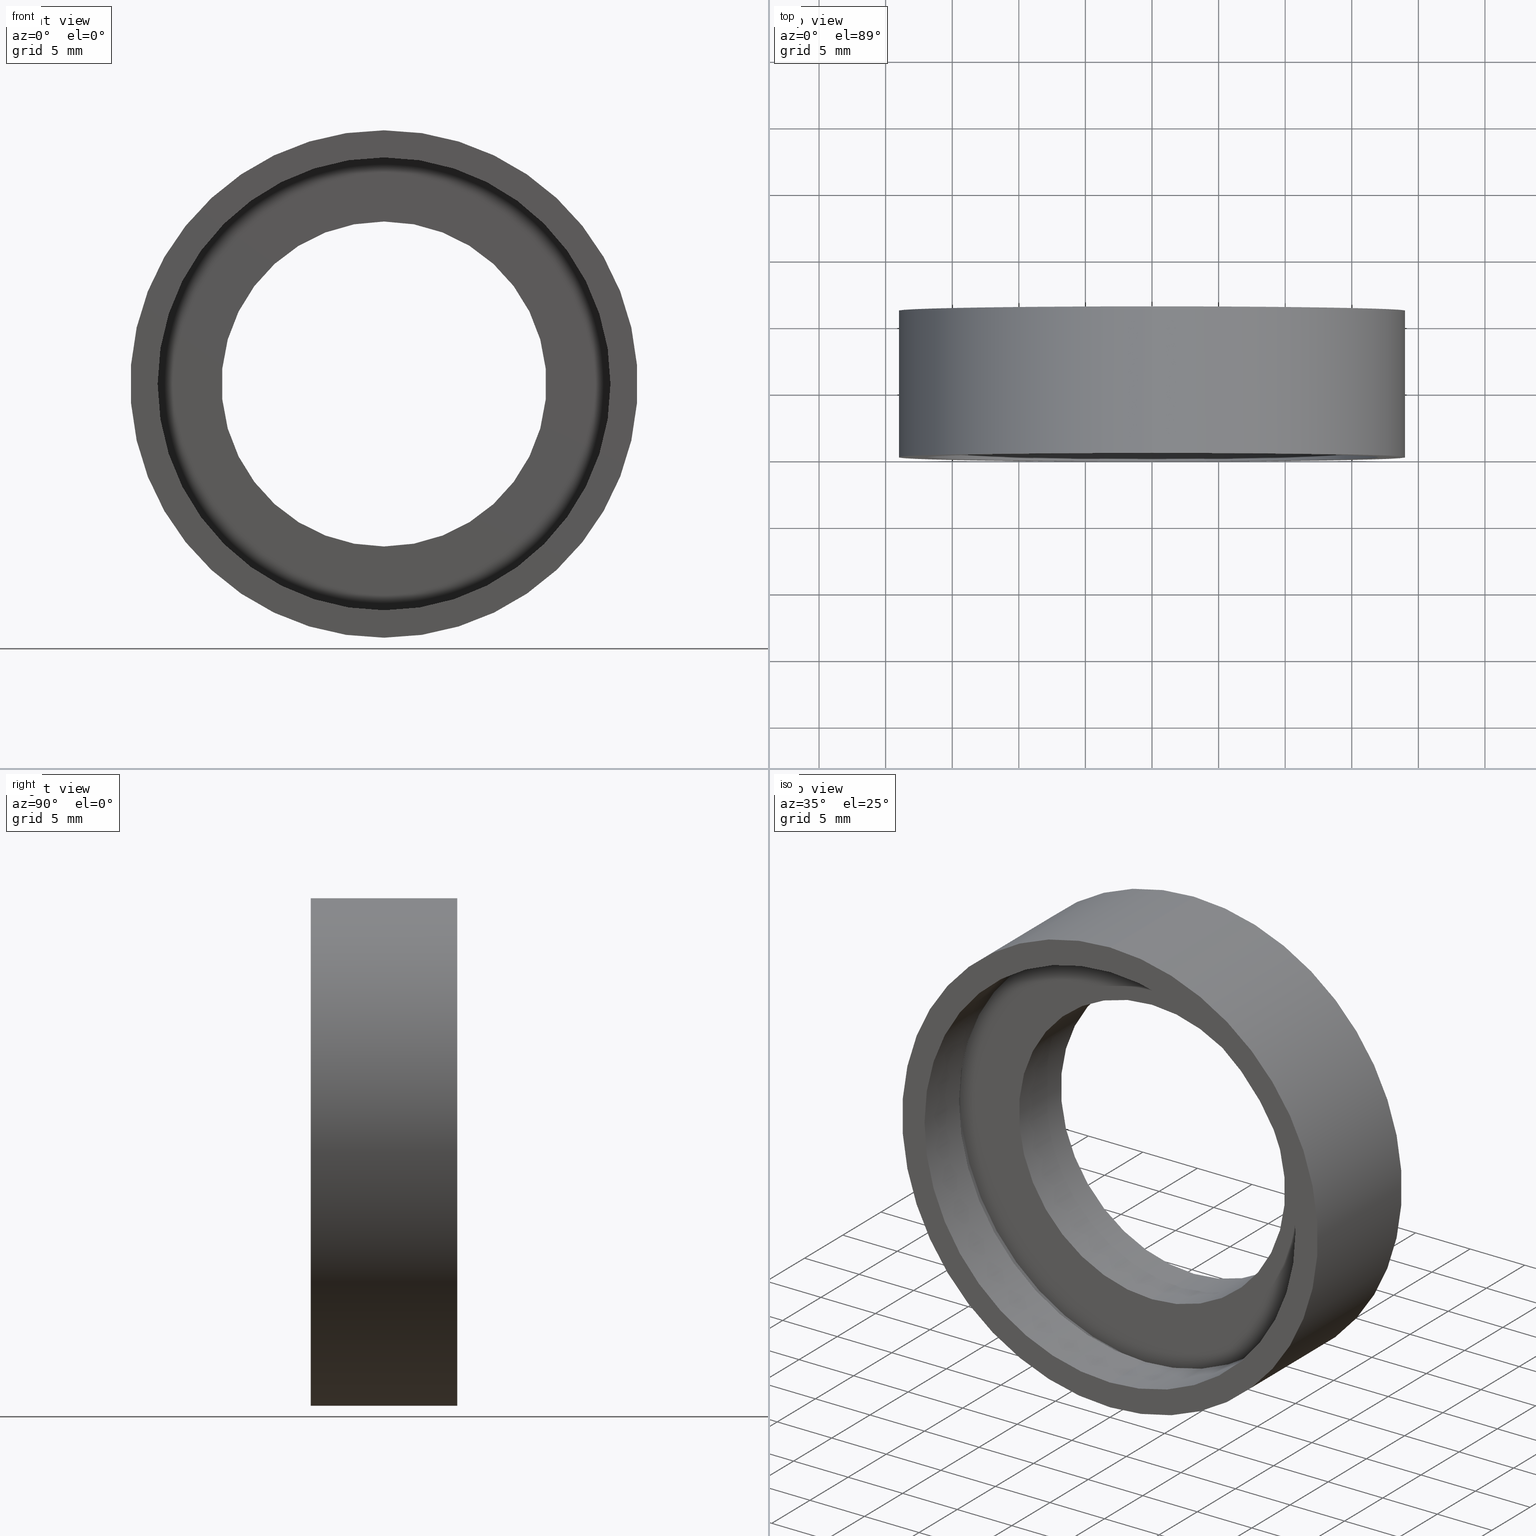
[diagram: canonical four-view strip — front | top / right | iso, engineering-drawing reading convention]
A machine part, canonical four-view strip (front | top / right | iso — engineering-drawing reading convention). The complete STEP part file that produces these views, byte-faithful:
ISO-10303-21;
HEADER;
FILE_DESCRIPTION (( 'STEP AP214' ),
    '1' );
FILE_NAME ('504057.STEP',
    '2019-10-09T07:02:09',
    ( 'user' ),
    ( '΢���й�' ),
    'SwSTEP 2.0',
    'SolidWorks 2016',
    '' );
FILE_SCHEMA (( 'AUTOMOTIVE_DESIGN' ));
ENDSEC;

DATA;
#1 = DIRECTION ( 'NONE',  ( -0.0000000000000000000, 1.000000000000000000, -0.0000000000000000000 ) ) ;
#2 = ORIENTED_EDGE ( 'NONE', *, *, #4, .F. ) ;
#3 = DIRECTION ( 'NONE',  ( 0.0000000000000000000, 0.0000000000000000000, 1.000000000000000000 ) ) ;
#4 = EDGE_CURVE ( 'NONE', #171, #128, #212, .T. ) ;
#5 = ADVANCED_FACE ( 'NONE', ( #52 ), #211, .T. ) ;
#6 = DIRECTION ( 'NONE',  ( 0.0000000000000000000, 0.0000000000000000000, 1.000000000000000000 ) ) ;
#7 = CIRCLE ( 'NONE', #50, 12.20000000000000600 ) ;
#8 = CARTESIAN_POINT ( 'NONE',  ( 0.0000000000000000000, 4.499999999999997300, 0.0000000000000000000 ) ) ;
#9 = MECHANICAL_DESIGN_GEOMETRIC_PRESENTATION_REPRESENTATION (  '', ( #310 ), #144 ) ;
#10 = CARTESIAN_POINT ( 'NONE',  ( 0.0000000000000000000, 0.0000000000000000000, 17.00000000000000700 ) ) ;
#11 =( NAMED_UNIT ( * ) SI_UNIT ( $, .STERADIAN. ) SOLID_ANGLE_UNIT ( ) );
#12 = EDGE_LOOP ( 'NONE', ( #146, #368, #273, #2 ) ) ;
#13 = VECTOR ( 'NONE', #434, 1000.000000000000000 ) ;
#14 = MECHANICAL_DESIGN_GEOMETRIC_PRESENTATION_REPRESENTATION (  '', ( #331 ), #34 ) ;
#15 = EDGE_LOOP ( 'NONE', ( #184, #426, #256, #110 ) ) ;
#16 = DIRECTION ( 'NONE',  ( 0.0000000000000000000, 0.0000000000000000000, 1.000000000000000000 ) ) ;
#17 = CARTESIAN_POINT ( 'NONE',  ( 0.0000000000000000000, 4.499999999999997300, 0.0000000000000000000 ) ) ;
#18 = EDGE_CURVE ( 'NONE', #318, #300, #360, .T. ) ;
#19 = CIRCLE ( 'NONE', #89, 19.05000000000000400 ) ;
#20 = DIRECTION ( 'NONE',  ( 0.0000000000000000000, -0.0000000000000000000, -1.000000000000000000 ) ) ;
#21 = VECTOR ( 'NONE', #107, 1000.000000000000000 ) ;
#22 = DIRECTION ( 'NONE',  ( 0.0000000000000000000, 0.0000000000000000000, 1.000000000000000000 ) ) ;
#23 = CARTESIAN_POINT ( 'NONE',  ( 0.0000000000000000000, 60.02082041425541100, 0.0000000000000000000 ) ) ;
#24 = SURFACE_STYLE_USAGE ( .BOTH. , #229 ) ;
#25 = PRESENTATION_STYLE_ASSIGNMENT (( #364 ) ) ;
#26 = DIRECTION ( 'NONE',  ( -0.0000000000000000000, 1.000000000000000000, -0.0000000000000000000 ) ) ;
#27 = CARTESIAN_POINT ( 'NONE',  ( 0.0000000000000000000, 5.499999999999998200, 17.60000000000001200 ) ) ;
#28 = VECTOR ( 'NONE', #258, 1000.000000000000000 ) ;
#29 = SURFACE_SIDE_STYLE ('',( #65 ) ) ;
#30 = AXIS2_PLACEMENT_3D ( 'NONE', #312, #228, #239 ) ;
#31 = DIRECTION ( 'NONE',  ( 0.0000000000000000000, 0.0000000000000000000, 1.000000000000000000 ) ) ;
#32 = CARTESIAN_POINT ( 'NONE',  ( 1.494069094959771600E-015, 10.99999999999999600, -12.20000000000000600 ) ) ;
#33 = LINE ( 'NONE', #279, #21 ) ;
#34 =( GEOMETRIC_REPRESENTATION_CONTEXT ( 3 ) GLOBAL_UNCERTAINTY_ASSIGNED_CONTEXT ( ( #432 ) ) GLOBAL_UNIT_ASSIGNED_CONTEXT ( ( #154, #209, #352 ) ) REPRESENTATION_CONTEXT ( 'NONE', 'WORKASPACE' ) );
#35 = ORIENTED_EDGE ( 'NONE', *, *, #406, .T. ) ;
#36 = DIRECTION ( 'NONE',  ( -0.0000000000000000000, 1.000000000000000000, -0.0000000000000000000 ) ) ;
#37 = ADVANCED_FACE ( 'NONE', ( #198 ), #316, .T. ) ;
#38 = PRESENTATION_LAYER_ASSIGNMENT (  '', '', ( #41 ) ) ;
#39 = DIRECTION ( 'NONE',  ( 0.0000000000000000000, 0.0000000000000000000, 1.000000000000000000 ) ) ;
#40 = CARTESIAN_POINT ( 'NONE',  ( 0.0000000000000000000, 60.02082041425541100, 0.0000000000000000000 ) ) ;
#41 = STYLED_ITEM ( 'NONE', ( #143 ), #354 ) ;
#42 = CARTESIAN_POINT ( 'NONE',  ( 0.0000000000000000000, 0.0000000000000000000, 0.0000000000000000000 ) ) ;
#43 = FILL_AREA_STYLE_COLOUR ( '', #66 ) ;
#44 = DIRECTION ( 'NONE',  ( -0.0000000000000000000, 1.000000000000000000, -0.0000000000000000000 ) ) ;
#45 = CIRCLE ( 'NONE', #265, 12.20000000000000600 ) ;
#46 = DIRECTION ( 'NONE',  ( -0.0000000000000000000, 1.000000000000000000, -0.0000000000000000000 ) ) ;
#47 = DIRECTION ( 'NONE',  ( 0.0000000000000000000, 0.0000000000000000000, 1.000000000000000000 ) ) ;
#48 = CARTESIAN_POINT ( 'NONE',  ( 0.0000000000000000000, 4.499999999999997300, 0.0000000000000000000 ) ) ;
#49 = DIRECTION ( 'NONE',  ( -0.0000000000000000000, 1.000000000000000000, -0.0000000000000000000 ) ) ;
#50 = AXIS2_PLACEMENT_3D ( 'NONE', #392, #147, #80 ) ;
#51 = CARTESIAN_POINT ( 'NONE',  ( 1.494069094959771600E-015, 60.02082041425541100, -12.20000000000000600 ) ) ;
#52 = FACE_OUTER_BOUND ( 'NONE', #413, .T. ) ;
#53 = PLANE ( 'NONE',  #335 ) ;
#54 = VECTOR ( 'NONE', #409, 1000.000000000000000 ) ;
#55 = COLOUR_RGB ( '',1.000000000000000000, 1.000000000000000000, 1.000000000000000000 ) ;
#56 = DIRECTION ( 'NONE',  ( 0.0000000000000000000, 0.0000000000000000000, 1.000000000000000000 ) ) ;
#57 = AXIS2_PLACEMENT_3D ( 'NONE', #240, #415, #3 ) ;
#58 = CARTESIAN_POINT ( 'NONE',  ( 0.0000000000000000000, 5.499999999999998200, 0.0000000000000000000 ) ) ;
#59 = PRODUCT ( '504057', '504057', '', ( #345 ) ) ;
#60 = PRESENTATION_STYLE_ASSIGNMENT (( #139 ) ) ;
#61 = CARTESIAN_POINT ( 'NONE',  ( 12.20000000000000600, 11.00000000000000000, 0.0000000000000000000 ) ) ;
#62 = ORIENTED_EDGE ( 'NONE', *, *, #379, .F. ) ;
#63 = ORIENTED_EDGE ( 'NONE', *, *, #153, .F. ) ;
#64 = DIRECTION ( 'NONE',  ( -0.0000000000000000000, 1.000000000000000000, -0.0000000000000000000 ) ) ;
#65 = SURFACE_STYLE_FILL_AREA ( #338 ) ;
#66 = COLOUR_RGB ( '',1.000000000000000000, 1.000000000000000000, 1.000000000000000000 ) ;
#67 = DIRECTION ( 'NONE',  ( 0.0000000000000000000, 0.0000000000000000000, 1.000000000000000000 ) ) ;
#68 = ORIENTED_EDGE ( 'NONE', *, *, #397, .F. ) ;
#69 = PRODUCT_DEFINITION ( 'δ֪', '', #150, #203 ) ;
#70 = CARTESIAN_POINT ( 'NONE',  ( 0.0000000000000000000, 10.99999999999999600, 0.0000000000000000000 ) ) ;
#71 = SURFACE_STYLE_FILL_AREA ( #197 ) ;
#72 = COLOUR_RGB ( '',1.000000000000000000, 1.000000000000000000, 1.000000000000000000 ) ;
#73 = CIRCLE ( 'NONE', #57, 17.00000000000000700 ) ;
#74 =( NAMED_UNIT ( * ) SI_UNIT ( $, .STERADIAN. ) SOLID_ANGLE_UNIT ( ) );
#75 =( GEOMETRIC_REPRESENTATION_CONTEXT ( 3 ) GLOBAL_UNCERTAINTY_ASSIGNED_CONTEXT ( ( #136 ) ) GLOBAL_UNIT_ASSIGNED_CONTEXT ( ( #272, #163, #299 ) ) REPRESENTATION_CONTEXT ( 'NONE', 'WORKASPACE' ) );
#76 = CARTESIAN_POINT ( 'NONE',  ( 0.0000000000000000000, 10.99999999999999600, 19.05000000000000400 ) ) ;
#77 = UNCERTAINTY_MEASURE_WITH_UNIT (LENGTH_MEASURE( 1.000000000000000100E-005 ), #199, 'distance_accuracy_value', 'NONE');
#78 = FACE_OUTER_BOUND ( 'NONE', #135, .T. ) ;
#79 =( GEOMETRIC_REPRESENTATION_CONTEXT ( 3 ) GLOBAL_UNCERTAINTY_ASSIGNED_CONTEXT ( ( #183 ) ) GLOBAL_UNIT_ASSIGNED_CONTEXT ( ( #222, #408, #11 ) ) REPRESENTATION_CONTEXT ( 'NONE', 'WORKASPACE' ) );
#80 = DIRECTION ( 'NONE',  ( 0.0000000000000000000, 0.0000000000000000000, 1.000000000000000000 ) ) ;
#81 = CARTESIAN_POINT ( 'NONE',  ( 0.0000000000000000000, 4.499999999999997300, 17.00000000000000700 ) ) ;
#82 = UNCERTAINTY_MEASURE_WITH_UNIT (LENGTH_MEASURE( 1.000000000000000100E-005 ), #378, 'distance_accuracy_value', 'NONE');
#83 = SHAPE_DEFINITION_REPRESENTATION ( #430, #194 ) ;
#84 = FACE_OUTER_BOUND ( 'NONE', #98, .T. ) ;
#85 = LINE ( 'NONE', #351, #220 ) ;
#86 = VERTEX_POINT ( 'NONE', #10 ) ;
#87 = UNCERTAINTY_MEASURE_WITH_UNIT (LENGTH_MEASURE( 1.000000000000000100E-005 ), #112, 'distance_accuracy_value', 'NONE');
#88 = ADVANCED_FACE ( 'NONE', ( #267 ), #367, .F. ) ;
#89 = AXIS2_PLACEMENT_3D ( 'NONE', #70, #91, #371 ) ;
#90 = AXIS2_PLACEMENT_3D ( 'NONE', #58, #332, #22 ) ;
#91 = DIRECTION ( 'NONE',  ( -0.0000000000000000000, 1.000000000000000000, -0.0000000000000000000 ) ) ;
#92 = AXIS2_PLACEMENT_3D ( 'NONE', #42, #67, #126 ) ;
#93 =( LENGTH_UNIT ( ) NAMED_UNIT ( * ) SI_UNIT ( .MILLI., .METRE. ) );
#94 = LINE ( 'NONE', #51, #54 ) ;
#95 = CIRCLE ( 'NONE', #280, 19.05000000000000400 ) ;
#96 = CYLINDRICAL_SURFACE ( 'NONE', #271, 17.00000000000000700 ) ;
#97 = DIRECTION ( 'NONE',  ( -0.0000000000000000000, 1.000000000000000000, 0.0000000000000000000 ) ) ;
#98 = EDGE_LOOP ( 'NONE', ( #277, #282 ) ) ;
#99 = AXIS2_PLACEMENT_3D ( 'NONE', #40, #44, #16 ) ;
#100 = DIRECTION ( 'NONE',  ( -0.0000000000000000000, 1.000000000000000000, -0.0000000000000000000 ) ) ;
#101 = CARTESIAN_POINT ( 'NONE',  ( 2.155378366499343200E-015, 60.02082041425541100, -17.60000000000001200 ) ) ;
#102 = AXIS2_PLACEMENT_3D ( 'NONE', #372, #263, #106 ) ;
#103 = CIRCLE ( 'NONE', #148, 19.05000000000000400 ) ;
#104 = ORIENTED_EDGE ( 'NONE', *, *, #342, .F. ) ;
#105 = EDGE_LOOP ( 'NONE', ( #422, #248, #424, #339 ) ) ;
#106 = DIRECTION ( 'NONE',  ( 0.0000000000000000000, 0.0000000000000000000, 1.000000000000000000 ) ) ;
#107 = DIRECTION ( 'NONE',  ( -0.0000000000000000000, 1.000000000000000000, -0.0000000000000000000 ) ) ;
#108 = EDGE_LOOP ( 'NONE', ( #63, #420, #257, #104 ) ) ;
#109 = DIRECTION ( 'NONE',  ( 0.0000000000000000000, 0.0000000000000000000, 1.000000000000000000 ) ) ;
#110 = ORIENTED_EDGE ( 'NONE', *, *, #18, .T. ) ;
#111 = DIRECTION ( 'NONE',  ( -0.0000000000000000000, 1.000000000000000000, -0.0000000000000000000 ) ) ;
#112 =( LENGTH_UNIT ( ) NAMED_UNIT ( * ) SI_UNIT ( .MILLI., .METRE. ) );
#113 = AXIS2_PLACEMENT_3D ( 'NONE', #193, #64, #116 ) ;
#114 = SURFACE_STYLE_FILL_AREA ( #125 ) ;
#115 = EDGE_CURVE ( 'NONE', #333, #171, #242, .T. ) ;
#116 = DIRECTION ( 'NONE',  ( 0.0000000000000000000, 0.0000000000000000000, 1.000000000000000000 ) ) ;
#117 = CIRCLE ( 'NONE', #278, 17.00000000000000700 ) ;
#118 = ORIENTED_EDGE ( 'NONE', *, *, #304, .T. ) ;
#119 = AXIS2_PLACEMENT_3D ( 'NONE', #48, #111, #164 ) ;
#120 = DIRECTION ( 'NONE',  ( 0.0000000000000000000, -0.0000000000000000000, -1.000000000000000000 ) ) ;
#121 = CIRCLE ( 'NONE', #359, 12.20000000000000600 ) ;
#122 = CARTESIAN_POINT ( 'NONE',  ( 0.0000000000000000000, 60.02082041425541100, 0.0000000000000000000 ) ) ;
#123 = AXIS2_PLACEMENT_3D ( 'NONE', #427, #419, #382 ) ;
#124 = PRESENTATION_STYLE_ASSIGNMENT (( #259 ) ) ;
#125 = FILL_AREA_STYLE ('',( #238 ) ) ;
#126 = DIRECTION ( 'NONE',  ( 1.000000000000000000, 0.0000000000000000000, 0.0000000000000000000 ) ) ;
#127 = ORIENTED_EDGE ( 'NONE', *, *, #373, .F. ) ;
#128 = VERTEX_POINT ( 'NONE', #27 ) ;
#129 = VERTEX_POINT ( 'NONE', #402 ) ;
#130 = EDGE_CURVE ( 'NONE', #156, #158, #94, .T. ) ;
#131 = DIRECTION ( 'NONE',  ( -0.0000000000000000000, 1.000000000000000000, 0.0000000000000000000 ) ) ;
#132 = DIRECTION ( 'NONE',  ( -0.0000000000000000000, 1.000000000000000000, -0.0000000000000000000 ) ) ;
#133 = DIRECTION ( 'NONE',  ( 0.0000000000000000000, 0.0000000000000000000, 1.000000000000000000 ) ) ;
#134 = VECTOR ( 'NONE', #46, 1000.000000000000000 ) ;
#135 = EDGE_LOOP ( 'NONE', ( #296, #215 ) ) ;
#136 = UNCERTAINTY_MEASURE_WITH_UNIT (LENGTH_MEASURE( 1.000000000000000100E-005 ), #272, 'distance_accuracy_value', 'NONE');
#137 = FACE_OUTER_BOUND ( 'NONE', #108, .T. ) ;
#138 = FACE_OUTER_BOUND ( 'NONE', #241, .T. ) ;
#139 = SURFACE_STYLE_USAGE ( .BOTH. , #216 ) ;
#140 = CARTESIAN_POINT ( 'NONE',  ( 0.0000000000000000000, 10.99999999999999600, 0.0000000000000000000 ) ) ;
#141 = FACE_BOUND ( 'NONE', #214, .T. ) ;
#142 = ADVANCED_FACE ( 'NONE', ( #411 ), #96, .F. ) ;
#143 = PRESENTATION_STYLE_ASSIGNMENT (( #357 ) ) ;
#144 =( GEOMETRIC_REPRESENTATION_CONTEXT ( 3 ) GLOBAL_UNCERTAINTY_ASSIGNED_CONTEXT ( ( #77 ) ) GLOBAL_UNIT_ASSIGNED_CONTEXT ( ( #199, #329, #291 ) ) REPRESENTATION_CONTEXT ( 'NONE', 'WORKASPACE' ) );
#145 = AXIS2_PLACEMENT_3D ( 'NONE', #431, #131, #219 ) ;
#146 = ORIENTED_EDGE ( 'NONE', *, *, #115, .F. ) ;
#147 = DIRECTION ( 'NONE',  ( -0.0000000000000000000, 1.000000000000000000, -0.0000000000000000000 ) ) ;
#148 = AXIS2_PLACEMENT_3D ( 'NONE', #405, #315, #31 ) ;
#149 = CYLINDRICAL_SURFACE ( 'NONE', #311, 12.20000000000000600 ) ;
#150 = PRODUCT_DEFINITION_FORMATION_WITH_SPECIFIED_SOURCE ( '�κ�', '', #59, .NOT_KNOWN. ) ;
#151 = VERTEX_POINT ( 'NONE', #76 ) ;
#152 = DIRECTION ( 'NONE',  ( 0.0000000000000000000, 0.0000000000000000000, 1.000000000000000000 ) ) ;
#153 = EDGE_CURVE ( 'NONE', #156, #170, #45, .T. ) ;
#154 =( LENGTH_UNIT ( ) NAMED_UNIT ( * ) SI_UNIT ( .MILLI., .METRE. ) );
#155 = ORIENTED_EDGE ( 'NONE', *, *, #185, .F. ) ;
#156 = VERTEX_POINT ( 'NONE', #205 ) ;
#157 = DIRECTION ( 'NONE',  ( -0.0000000000000000000, 1.000000000000000000, -0.0000000000000000000 ) ) ;
#158 = VERTEX_POINT ( 'NONE', #32 ) ;
#159 = FILL_AREA_STYLE_COLOUR ( '', #186 ) ;
#160 = DIRECTION ( 'NONE',  ( -0.0000000000000000000, 1.000000000000000000, -0.0000000000000000000 ) ) ;
#161 = ORIENTED_EDGE ( 'NONE', *, *, #386, .F. ) ;
#162 = ORIENTED_EDGE ( 'NONE', *, *, #130, .F. ) ;
#163 =( NAMED_UNIT ( * ) PLANE_ANGLE_UNIT ( ) SI_UNIT ( $, .RADIAN. ) );
#164 = DIRECTION ( 'NONE',  ( 0.0000000000000000000, 0.0000000000000000000, 1.000000000000000000 ) ) ;
#165 = ORIENTED_EDGE ( 'NONE', *, *, #313, .T. ) ;
#166 = ORIENTED_EDGE ( 'NONE', *, *, #376, .F. ) ;
#167 =( NAMED_UNIT ( * ) SI_UNIT ( $, .STERADIAN. ) SOLID_ANGLE_UNIT ( ) );
#168 = APPLICATION_CONTEXT ( 'automotive_design' ) ;
#169 = DIRECTION ( 'NONE',  ( 0.0000000000000000000, 0.0000000000000000000, 1.000000000000000000 ) ) ;
#170 = VERTEX_POINT ( 'NONE', #418 ) ;
#171 = VERTEX_POINT ( 'NONE', #353 ) ;
#172 = CARTESIAN_POINT ( 'NONE',  ( 0.0000000000000000000, 60.02082041425541100, 19.05000000000000400 ) ) ;
#173 = FILL_AREA_STYLE_COLOUR ( '', #55 ) ;
#174 = EDGE_LOOP ( 'NONE', ( #165, #187 ) ) ;
#175 = AXIS2_PLACEMENT_3D ( 'NONE', #403, #309, #6 ) ;
#176 = CIRCLE ( 'NONE', #113, 19.05000000000000400 ) ;
#177 = AXIS2_PLACEMENT_3D ( 'NONE', #349, #36, #213 ) ;
#178 = SURFACE_STYLE_FILL_AREA ( #317 ) ;
#179 = CARTESIAN_POINT ( 'NONE',  ( 2.332952152375708400E-015, 60.02082041425541100, -19.05000000000000400 ) ) ;
#180 = CIRCLE ( 'NONE', #119, 17.60000000000001200 ) ;
#181 = EDGE_LOOP ( 'NONE', ( #341, #118, #230, #127 ) ) ;
#182 = FILL_AREA_STYLE ('',( #227 ) ) ;
#183 = UNCERTAINTY_MEASURE_WITH_UNIT (LENGTH_MEASURE( 1.000000000000000100E-005 ), #222, 'distance_accuracy_value', 'NONE');
#184 = ORIENTED_EDGE ( 'NONE', *, *, #304, .F. ) ;
#185 = EDGE_CURVE ( 'NONE', #326, #128, #390, .T. ) ;
#186 = COLOUR_RGB ( '',1.000000000000000000, 1.000000000000000000, 1.000000000000000000 ) ;
#187 = ORIENTED_EDGE ( 'NONE', *, *, #400, .T. ) ;
#188 = DIRECTION ( 'NONE',  ( -0.0000000000000000000, 1.000000000000000000, -0.0000000000000000000 ) ) ;
#189 = CARTESIAN_POINT ( 'NONE',  ( 0.0000000000000000000, 0.0000000000000000000, 19.05000000000000400 ) ) ;
#190 = ORIENTED_EDGE ( 'NONE', *, *, #18, .F. ) ;
#191 = FACE_OUTER_BOUND ( 'NONE', #255, .T. ) ;
#192 = FACE_OUTER_BOUND ( 'NONE', #12, .T. ) ;
#193 = CARTESIAN_POINT ( 'NONE',  ( 0.0000000000000000000, 0.0000000000000000000, 0.0000000000000000000 ) ) ;
#194 = ADVANCED_BREP_SHAPE_REPRESENTATION ( '504057', ( #303, #92 ), #79 ) ;
#195 = DIRECTION ( 'NONE',  ( -0.0000000000000000000, 1.000000000000000000, -0.0000000000000000000 ) ) ;
#196 = MECHANICAL_DESIGN_GEOMETRIC_PRESENTATION_REPRESENTATION (  '', ( #274 ), #217 ) ;
#197 = FILL_AREA_STYLE ('',( #43 ) ) ;
#198 = FACE_OUTER_BOUND ( 'NONE', #105, .T. ) ;
#199 =( LENGTH_UNIT ( ) NAMED_UNIT ( * ) SI_UNIT ( .MILLI., .METRE. ) );
#200 = APPLICATION_CONTEXT ( 'automotive_design' ) ;
#201 = PRESENTATION_LAYER_ASSIGNMENT (  '', '', ( #274 ) ) ;
#202 = SURFACE_SIDE_STYLE ('',( #178 ) ) ;
#203 = PRODUCT_DEFINITION_CONTEXT ( 'detailed design', #168, 'design' ) ;
#204 = CIRCLE ( 'NONE', #208, 17.00000000000000700 ) ;
#205 = CARTESIAN_POINT ( 'NONE',  ( 1.494069094959771600E-015, 5.499999999999998200, -12.20000000000000600 ) ) ;
#206 = PRESENTATION_STYLE_ASSIGNMENT (( #24 ) ) ;
#207 = FACE_BOUND ( 'NONE', #399, .T. ) ;
#208 = AXIS2_PLACEMENT_3D ( 'NONE', #276, #395, #340 ) ;
#209 =( NAMED_UNIT ( * ) PLANE_ANGLE_UNIT ( ) SI_UNIT ( $, .RADIAN. ) );
#210 = DIRECTION ( 'NONE',  ( -0.0000000000000000000, 1.000000000000000000, -0.0000000000000000000 ) ) ;
#211 = CYLINDRICAL_SURFACE ( 'NONE', #30, 19.05000000000000400 ) ;
#212 = LINE ( 'NONE', #324, #13 ) ;
#213 = DIRECTION ( 'NONE',  ( 0.0000000000000000000, 0.0000000000000000000, 1.000000000000000000 ) ) ;
#214 = EDGE_LOOP ( 'NONE', ( #433, #268 ) ) ;
#215 = ORIENTED_EDGE ( 'NONE', *, *, #115, .T. ) ;
#216 = SURFACE_SIDE_STYLE ('',( #71 ) ) ;
#217 =( GEOMETRIC_REPRESENTATION_CONTEXT ( 3 ) GLOBAL_UNCERTAINTY_ASSIGNED_CONTEXT ( ( #82 ) ) GLOBAL_UNIT_ASSIGNED_CONTEXT ( ( #378, #355, #74 ) ) REPRESENTATION_CONTEXT ( 'NONE', 'WORKASPACE' ) );
#218 = CARTESIAN_POINT ( 'NONE',  ( 2.332952152375708400E-015, 10.99999999999999600, -19.05000000000000400 ) ) ;
#219 = DIRECTION ( 'NONE',  ( 0.0000000000000000000, 0.0000000000000000000, 1.000000000000000000 ) ) ;
#220 = VECTOR ( 'NONE', #26, 1000.000000000000000 ) ;
#221 = FACE_OUTER_BOUND ( 'NONE', #15, .T. ) ;
#222 =( LENGTH_UNIT ( ) NAMED_UNIT ( * ) SI_UNIT ( .MILLI., .METRE. ) );
#223 = AXIS2_PLACEMENT_3D ( 'NONE', #8, #384, #56 ) ;
#224 = EDGE_LOOP ( 'NONE', ( #161, #68, #262, #348 ) ) ;
#225 = CYLINDRICAL_SURFACE ( 'NONE', #102, 17.00000000000000700 ) ;
#226 = EDGE_CURVE ( 'NONE', #300, #318, #117, .T. ) ;
#227 = FILL_AREA_STYLE_COLOUR ( '', #281 ) ;
#228 = DIRECTION ( 'NONE',  ( -0.0000000000000000000, 1.000000000000000000, -0.0000000000000000000 ) ) ;
#229 = SURFACE_SIDE_STYLE ('',( #321 ) ) ;
#230 = ORIENTED_EDGE ( 'NONE', *, *, #226, .T. ) ;
#231 = APPLICATION_PROTOCOL_DEFINITION ( 'draft international standard', 'automotive_design', 1998, #168 ) ;
#232 = PRODUCT_RELATED_PRODUCT_CATEGORY ( 'part', '', ( #59 ) ) ;
#233 = PLANE ( 'NONE',  #369 ) ;
#234 = MECHANICAL_DESIGN_GEOMETRIC_PRESENTATION_REPRESENTATION (  '', ( #328 ), #244 ) ;
#235 = ORIENTED_EDGE ( 'NONE', *, *, #365, .T. ) ;
#236 = FACE_BOUND ( 'NONE', #290, .T. ) ;
#237 = EDGE_CURVE ( 'NONE', #387, #151, #95, .T. ) ;
#238 = FILL_AREA_STYLE_COLOUR ( '', #253 ) ;
#239 = DIRECTION ( 'NONE',  ( 0.0000000000000000000, 0.0000000000000000000, 1.000000000000000000 ) ) ;
#240 = CARTESIAN_POINT ( 'NONE',  ( 0.0000000000000000000, 0.0000000000000000000, 0.0000000000000000000 ) ) ;
#241 = EDGE_LOOP ( 'NONE', ( #294, #155 ) ) ;
#242 = CIRCLE ( 'NONE', #223, 17.60000000000001200 ) ;
#243 = ORIENTED_EDGE ( 'NONE', *, *, #319, .F. ) ;
#244 =( GEOMETRIC_REPRESENTATION_CONTEXT ( 3 ) GLOBAL_UNCERTAINTY_ASSIGNED_CONTEXT ( ( #87 ) ) GLOBAL_UNIT_ASSIGNED_CONTEXT ( ( #112, #337, #167 ) ) REPRESENTATION_CONTEXT ( 'NONE', 'WORKASPACE' ) );
#245 = DIRECTION ( 'NONE',  ( -0.0000000000000000000, 1.000000000000000000, -0.0000000000000000000 ) ) ;
#246 = PRESENTATION_LAYER_ASSIGNMENT (  '', '', ( #297 ) ) ;
#247 = MECHANICAL_DESIGN_GEOMETRIC_PRESENTATION_REPRESENTATION (  '', ( #297 ), #252 ) ;
#248 = ORIENTED_EDGE ( 'NONE', *, *, #379, .T. ) ;
#249 = ORIENTED_EDGE ( 'NONE', *, *, #237, .F. ) ;
#250 = APPLICATION_PROTOCOL_DEFINITION ( 'draft international standard', 'automotive_design', 1998, #200 ) ;
#251 = DIRECTION ( 'NONE',  ( -0.0000000000000000000, 1.000000000000000000, -0.0000000000000000000 ) ) ;
#252 =( GEOMETRIC_REPRESENTATION_CONTEXT ( 3 ) GLOBAL_UNCERTAINTY_ASSIGNED_CONTEXT ( ( #320 ) ) GLOBAL_UNIT_ASSIGNED_CONTEXT ( ( #93, #421, #266 ) ) REPRESENTATION_CONTEXT ( 'NONE', 'WORKASPACE' ) );
#253 = COLOUR_RGB ( '',1.000000000000000000, 1.000000000000000000, 1.000000000000000000 ) ;
#254 = CARTESIAN_POINT ( 'NONE',  ( 0.0000000000000000000, 10.99999999999999600, 0.0000000000000000000 ) ) ;
#255 = EDGE_LOOP ( 'NONE', ( #162, #243, #308, #327 ) ) ;
#256 = ORIENTED_EDGE ( 'NONE', *, *, #373, .T. ) ;
#257 = ORIENTED_EDGE ( 'NONE', *, *, #293, .T. ) ;
#258 = DIRECTION ( 'NONE',  ( -0.0000000000000000000, 1.000000000000000000, -0.0000000000000000000 ) ) ;
#259 = SURFACE_STYLE_USAGE ( .BOTH. , #407 ) ;
#260 = AXIS2_PLACEMENT_3D ( 'NONE', #410, #49, #39 ) ;
#261 = FACE_OUTER_BOUND ( 'NONE', #394, .T. ) ;
#262 = ORIENTED_EDGE ( 'NONE', *, *, #4, .T. ) ;
#263 = DIRECTION ( 'NONE',  ( -0.0000000000000000000, 1.000000000000000000, -0.0000000000000000000 ) ) ;
#264 = LINE ( 'NONE', #101, #28 ) ;
#265 = AXIS2_PLACEMENT_3D ( 'NONE', #363, #157, #152 ) ;
#266 =( NAMED_UNIT ( * ) SI_UNIT ( $, .STERADIAN. ) SOLID_ANGLE_UNIT ( ) );
#267 = FACE_OUTER_BOUND ( 'NONE', #224, .T. ) ;
#268 = ORIENTED_EDGE ( 'NONE', *, *, #293, .F. ) ;
#269 = SURFACE_STYLE_USAGE ( .BOTH. , #29 ) ;
#270 = DIRECTION ( 'NONE',  ( 0.0000000000000000000, 0.0000000000000000000, 1.000000000000000000 ) ) ;
#271 = AXIS2_PLACEMENT_3D ( 'NONE', #122, #210, #401 ) ;
#272 =( LENGTH_UNIT ( ) NAMED_UNIT ( * ) SI_UNIT ( .MILLI., .METRE. ) );
#273 = ORIENTED_EDGE ( 'NONE', *, *, #185, .T. ) ;
#274 = STYLED_ITEM ( 'NONE', ( #124 ), #396 ) ;
#275 = LINE ( 'NONE', #287, #134 ) ;
#276 = CARTESIAN_POINT ( 'NONE',  ( 0.0000000000000000000, 0.0000000000000000000, 0.0000000000000000000 ) ) ;
#277 = ORIENTED_EDGE ( 'NONE', *, *, #391, .T. ) ;
#278 = AXIS2_PLACEMENT_3D ( 'NONE', #17, #1, #109 ) ;
#279 = CARTESIAN_POINT ( 'NONE',  ( 0.0000000000000000000, 60.02082041425541100, 12.20000000000000600 ) ) ;
#280 = AXIS2_PLACEMENT_3D ( 'NONE', #388, #100, #377 ) ;
#281 = COLOUR_RGB ( '',1.000000000000000000, 1.000000000000000000, 1.000000000000000000 ) ;
#282 = ORIENTED_EDGE ( 'NONE', *, *, #237, .T. ) ;
#283 = PLANE ( 'NONE',  #330 ) ;
#284 = LINE ( 'NONE', #172, #375 ) ;
#285 = CIRCLE ( 'NONE', #90, 17.60000000000001200 ) ;
#286 = AXIS2_PLACEMENT_3D ( 'NONE', #254, #245, #169 ) ;
#287 = CARTESIAN_POINT ( 'NONE',  ( 0.0000000000000000000, 60.02082041425541100, 17.00000000000000700 ) ) ;
#288 = CARTESIAN_POINT ( 'NONE',  ( 2.332952152375708400E-015, 0.0000000000000000000, -19.05000000000000400 ) ) ;
#289 = ORIENTED_EDGE ( 'NONE', *, *, #319, .T. ) ;
#290 = EDGE_LOOP ( 'NONE', ( #289, #305 ) ) ;
#291 =( NAMED_UNIT ( * ) SI_UNIT ( $, .STERADIAN. ) SOLID_ANGLE_UNIT ( ) );
#292 = CARTESIAN_POINT ( 'NONE',  ( 2.081899558550501500E-015, 4.499999999999997300, -17.00000000000000700 ) ) ;
#293 = EDGE_CURVE ( 'NONE', #158, #380, #314, .T. ) ;
#294 = ORIENTED_EDGE ( 'NONE', *, *, #362, .F. ) ;
#295 = CYLINDRICAL_SURFACE ( 'NONE', #177, 12.20000000000000600 ) ;
#296 = ORIENTED_EDGE ( 'NONE', *, *, #397, .T. ) ;
#297 = STYLED_ITEM ( 'NONE', ( #25 ), #142 ) ;
#298 = ADVANCED_FACE ( 'NONE', ( #207, #78 ), #53, .F. ) ;
#299 =( NAMED_UNIT ( * ) SI_UNIT ( $, .STERADIAN. ) SOLID_ANGLE_UNIT ( ) );
#300 = VERTEX_POINT ( 'NONE', #292 ) ;
#301 = CARTESIAN_POINT ( 'NONE',  ( 19.05000000000000400, -5.143516556418878000E-016, 0.0000000000000000000 ) ) ;
#302 = FILL_AREA_STYLE_COLOUR ( '', #72 ) ;
#303 = MANIFOLD_SOLID_BREP ( '��ת1', #350 ) ;
#304 = EDGE_CURVE ( 'NONE', #129, #300, #85, .T. ) ;
#305 = ORIENTED_EDGE ( 'NONE', *, *, #153, .T. ) ;
#306 = FACE_BOUND ( 'NONE', #174, .T. ) ;
#307 = AXIS2_PLACEMENT_3D ( 'NONE', #23, #160, #47 ) ;
#308 = ORIENTED_EDGE ( 'NONE', *, *, #342, .T. ) ;
#309 = DIRECTION ( 'NONE',  ( -0.0000000000000000000, 1.000000000000000000, -0.0000000000000000000 ) ) ;
#310 = STYLED_ITEM ( 'NONE', ( #322 ), #194 ) ;
#311 = AXIS2_PLACEMENT_3D ( 'NONE', #366, #251, #133 ) ;
#312 = CARTESIAN_POINT ( 'NONE',  ( 0.0000000000000000000, 60.02082041425541100, 0.0000000000000000000 ) ) ;
#313 = EDGE_CURVE ( 'NONE', #86, #129, #73, .T. ) ;
#314 = CIRCLE ( 'NONE', #286, 12.20000000000000600 ) ;
#315 = DIRECTION ( 'NONE',  ( -0.0000000000000000000, 1.000000000000000000, -0.0000000000000000000 ) ) ;
#316 = CYLINDRICAL_SURFACE ( 'NONE', #307, 19.05000000000000400 ) ;
#317 = FILL_AREA_STYLE ('',( #173 ) ) ;
#318 = VERTEX_POINT ( 'NONE', #81 ) ;
#319 = EDGE_CURVE ( 'NONE', #170, #156, #7, .T. ) ;
#320 = UNCERTAINTY_MEASURE_WITH_UNIT (LENGTH_MEASURE( 1.000000000000000100E-005 ), #93, 'distance_accuracy_value', 'NONE');
#321 = SURFACE_STYLE_FILL_AREA ( #182 ) ;
#322 = PRESENTATION_STYLE_ASSIGNMENT (( #269 ) ) ;
#323 = CARTESIAN_POINT ( 'NONE',  ( 17.00000000000000700, 4.499999999999999100, 0.0000000000000000000 ) ) ;
#324 = CARTESIAN_POINT ( 'NONE',  ( 0.0000000000000000000, 60.02082041425541100, 17.60000000000001200 ) ) ;
#325 = PRESENTATION_LAYER_ASSIGNMENT (  '', '', ( #328 ) ) ;
#326 = VERTEX_POINT ( 'NONE', #383 ) ;
#327 = ORIENTED_EDGE ( 'NONE', *, *, #414, .T. ) ;
#328 = STYLED_ITEM ( 'NONE', ( #206 ), #404 ) ;
#329 =( NAMED_UNIT ( * ) PLANE_ANGLE_UNIT ( ) SI_UNIT ( $, .RADIAN. ) );
#330 = AXIS2_PLACEMENT_3D ( 'NONE', #301, #97, #270 ) ;
#331 = STYLED_ITEM ( 'NONE', ( #60 ), #303 ) ;
#332 = DIRECTION ( 'NONE',  ( -0.0000000000000000000, 1.000000000000000000, -0.0000000000000000000 ) ) ;
#333 = VERTEX_POINT ( 'NONE', #385 ) ;
#334 = CYLINDRICAL_SURFACE ( 'NONE', #99, 17.60000000000001200 ) ;
#335 = AXIS2_PLACEMENT_3D ( 'NONE', #323, #425, #20 ) ;
#336 = FILL_AREA_STYLE ('',( #302 ) ) ;
#337 =( NAMED_UNIT ( * ) PLANE_ANGLE_UNIT ( ) SI_UNIT ( $, .RADIAN. ) );
#338 = FILL_AREA_STYLE ('',( #159 ) ) ;
#339 = ORIENTED_EDGE ( 'NONE', *, *, #406, .F. ) ;
#340 = DIRECTION ( 'NONE',  ( 0.0000000000000000000, 0.0000000000000000000, 1.000000000000000000 ) ) ;
#341 = ORIENTED_EDGE ( 'NONE', *, *, #400, .F. ) ;
#342 = EDGE_CURVE ( 'NONE', #170, #380, #33, .T. ) ;
#343 = CARTESIAN_POINT ( 'NONE',  ( 0.0000000000000000000, 10.99999999999999600, 12.20000000000000600 ) ) ;
#344 = VERTEX_POINT ( 'NONE', #288 ) ;
#345 = PRODUCT_CONTEXT ( 'NONE', #200, 'mechanical' ) ;
#346 = PRESENTATION_LAYER_ASSIGNMENT (  '', '', ( #310 ) ) ;
#347 = MECHANICAL_DESIGN_GEOMETRIC_PRESENTATION_REPRESENTATION (  '', ( #41 ), #75 ) ;
#348 = ORIENTED_EDGE ( 'NONE', *, *, #362, .T. ) ;
#349 = CARTESIAN_POINT ( 'NONE',  ( 0.0000000000000000000, 60.02082041425541100, 0.0000000000000000000 ) ) ;
#350 = CLOSED_SHELL ( 'NONE', ( #37, #396, #356, #142, #416, #354, #298, #88, #358, #404, #412, #5 ) ) ;
#351 = CARTESIAN_POINT ( 'NONE',  ( 2.081899558550501500E-015, 60.02082041425541100, -17.00000000000000700 ) ) ;
#352 =( NAMED_UNIT ( * ) SI_UNIT ( $, .STERADIAN. ) SOLID_ANGLE_UNIT ( ) );
#353 = CARTESIAN_POINT ( 'NONE',  ( 0.0000000000000000000, 4.499999999999997300, 17.60000000000001200 ) ) ;
#354 = ADVANCED_FACE ( 'NONE', ( #221 ), #225, .F. ) ;
#355 =( NAMED_UNIT ( * ) PLANE_ANGLE_UNIT ( ) SI_UNIT ( $, .RADIAN. ) );
#356 = ADVANCED_FACE ( 'NONE', ( #192 ), #334, .F. ) ;
#357 = SURFACE_STYLE_USAGE ( .BOTH. , #428 ) ;
#358 = ADVANCED_FACE ( 'NONE', ( #138, #236 ), #423, .F. ) ;
#359 = AXIS2_PLACEMENT_3D ( 'NONE', #140, #132, #398 ) ;
#360 = CIRCLE ( 'NONE', #123, 17.00000000000000700 ) ;
#361 = ORIENTED_EDGE ( 'NONE', *, *, #365, .F. ) ;
#362 = EDGE_CURVE ( 'NONE', #128, #326, #285, .T. ) ;
#363 = CARTESIAN_POINT ( 'NONE',  ( 0.0000000000000000000, 5.499999999999998200, 0.0000000000000000000 ) ) ;
#364 = SURFACE_STYLE_USAGE ( .BOTH. , #202 ) ;
#365 = EDGE_CURVE ( 'NONE', #344, #374, #176, .T. ) ;
#366 = CARTESIAN_POINT ( 'NONE',  ( 0.0000000000000000000, 60.02082041425541100, 0.0000000000000000000 ) ) ;
#367 = CYLINDRICAL_SURFACE ( 'NONE', #175, 17.60000000000001200 ) ;
#368 = ORIENTED_EDGE ( 'NONE', *, *, #386, .T. ) ;
#369 = AXIS2_PLACEMENT_3D ( 'NONE', #61, #370, #120 ) ;
#370 = DIRECTION ( 'NONE',  ( 0.0000000000000000000, -1.000000000000000000, 0.0000000000000000000 ) ) ;
#371 = DIRECTION ( 'NONE',  ( 0.0000000000000000000, 0.0000000000000000000, 1.000000000000000000 ) ) ;
#372 = CARTESIAN_POINT ( 'NONE',  ( 0.0000000000000000000, 60.02082041425541100, 0.0000000000000000000 ) ) ;
#373 = EDGE_CURVE ( 'NONE', #86, #318, #275, .T. ) ;
#374 = VERTEX_POINT ( 'NONE', #189 ) ;
#375 = VECTOR ( 'NONE', #195, 1000.000000000000000 ) ;
#376 = EDGE_CURVE ( 'NONE', #374, #344, #103, .T. ) ;
#377 = DIRECTION ( 'NONE',  ( 0.0000000000000000000, 0.0000000000000000000, 1.000000000000000000 ) ) ;
#378 =( LENGTH_UNIT ( ) NAMED_UNIT ( * ) SI_UNIT ( .MILLI., .METRE. ) );
#379 = EDGE_CURVE ( 'NONE', #344, #387, #393, .T. ) ;
#380 = VERTEX_POINT ( 'NONE', #343 ) ;
#381 = SURFACE_STYLE_FILL_AREA ( #336 ) ;
#382 = DIRECTION ( 'NONE',  ( 0.0000000000000000000, 0.0000000000000000000, 1.000000000000000000 ) ) ;
#383 = CARTESIAN_POINT ( 'NONE',  ( 2.155378366499343200E-015, 5.499999999999998200, -17.60000000000001200 ) ) ;
#384 = DIRECTION ( 'NONE',  ( -0.0000000000000000000, 1.000000000000000000, -0.0000000000000000000 ) ) ;
#385 = CARTESIAN_POINT ( 'NONE',  ( 2.155378366499343200E-015, 4.499999999999997300, -17.60000000000001200 ) ) ;
#386 = EDGE_CURVE ( 'NONE', #333, #326, #264, .T. ) ;
#387 = VERTEX_POINT ( 'NONE', #218 ) ;
#388 = CARTESIAN_POINT ( 'NONE',  ( 0.0000000000000000000, 10.99999999999999600, 0.0000000000000000000 ) ) ;
#389 = ORIENTED_EDGE ( 'NONE', *, *, #226, .F. ) ;
#390 = CIRCLE ( 'NONE', #260, 17.60000000000001200 ) ;
#391 = EDGE_CURVE ( 'NONE', #151, #387, #19, .T. ) ;
#392 = CARTESIAN_POINT ( 'NONE',  ( 0.0000000000000000000, 5.499999999999998200, 0.0000000000000000000 ) ) ;
#393 = LINE ( 'NONE', #179, #417 ) ;
#394 = EDGE_LOOP ( 'NONE', ( #166, #361 ) ) ;
#395 = DIRECTION ( 'NONE',  ( -0.0000000000000000000, 1.000000000000000000, -0.0000000000000000000 ) ) ;
#396 = ADVANCED_FACE ( 'NONE', ( #137 ), #149, .F. ) ;
#397 = EDGE_CURVE ( 'NONE', #171, #333, #180, .T. ) ;
#398 = DIRECTION ( 'NONE',  ( 0.0000000000000000000, 0.0000000000000000000, 1.000000000000000000 ) ) ;
#399 = EDGE_LOOP ( 'NONE', ( #190, #389 ) ) ;
#400 = EDGE_CURVE ( 'NONE', #129, #86, #204, .T. ) ;
#401 = DIRECTION ( 'NONE',  ( 0.0000000000000000000, 0.0000000000000000000, 1.000000000000000000 ) ) ;
#402 = CARTESIAN_POINT ( 'NONE',  ( 2.081899558550501500E-015, 0.0000000000000000000, -17.00000000000000700 ) ) ;
#403 = CARTESIAN_POINT ( 'NONE',  ( 0.0000000000000000000, 60.02082041425541100, 0.0000000000000000000 ) ) ;
#404 = ADVANCED_FACE ( 'NONE', ( #191 ), #295, .F. ) ;
#405 = CARTESIAN_POINT ( 'NONE',  ( 0.0000000000000000000, 0.0000000000000000000, 0.0000000000000000000 ) ) ;
#406 = EDGE_CURVE ( 'NONE', #374, #151, #284, .T. ) ;
#407 = SURFACE_SIDE_STYLE ('',( #114 ) ) ;
#408 =( NAMED_UNIT ( * ) PLANE_ANGLE_UNIT ( ) SI_UNIT ( $, .RADIAN. ) );
#409 = DIRECTION ( 'NONE',  ( -0.0000000000000000000, 1.000000000000000000, -0.0000000000000000000 ) ) ;
#410 = CARTESIAN_POINT ( 'NONE',  ( 0.0000000000000000000, 5.499999999999998200, 0.0000000000000000000 ) ) ;
#411 = FACE_OUTER_BOUND ( 'NONE', #181, .T. ) ;
#412 = ADVANCED_FACE ( 'NONE', ( #141, #84 ), #233, .F. ) ;
#413 = EDGE_LOOP ( 'NONE', ( #62, #235, #35, #249 ) ) ;
#414 = EDGE_CURVE ( 'NONE', #380, #158, #121, .T. ) ;
#415 = DIRECTION ( 'NONE',  ( -0.0000000000000000000, 1.000000000000000000, -0.0000000000000000000 ) ) ;
#416 = ADVANCED_FACE ( 'NONE', ( #261, #306 ), #283, .F. ) ;
#417 = VECTOR ( 'NONE', #188, 1000.000000000000000 ) ;
#418 = CARTESIAN_POINT ( 'NONE',  ( 0.0000000000000000000, 5.499999999999998200, 12.20000000000000600 ) ) ;
#419 = DIRECTION ( 'NONE',  ( -0.0000000000000000000, 1.000000000000000000, -0.0000000000000000000 ) ) ;
#420 = ORIENTED_EDGE ( 'NONE', *, *, #130, .T. ) ;
#421 =( NAMED_UNIT ( * ) PLANE_ANGLE_UNIT ( ) SI_UNIT ( $, .RADIAN. ) );
#422 = ORIENTED_EDGE ( 'NONE', *, *, #376, .T. ) ;
#423 = PLANE ( 'NONE',  #145 ) ;
#424 = ORIENTED_EDGE ( 'NONE', *, *, #391, .F. ) ;
#425 = DIRECTION ( 'NONE',  ( 0.0000000000000000000, -1.000000000000000000, 0.0000000000000000000 ) ) ;
#426 = ORIENTED_EDGE ( 'NONE', *, *, #313, .F. ) ;
#427 = CARTESIAN_POINT ( 'NONE',  ( 0.0000000000000000000, 4.499999999999997300, 0.0000000000000000000 ) ) ;
#428 = SURFACE_SIDE_STYLE ('',( #381 ) ) ;
#429 = PRESENTATION_LAYER_ASSIGNMENT (  '', '', ( #331 ) ) ;
#430 = PRODUCT_DEFINITION_SHAPE ( 'NONE', 'NONE',  #69 ) ;
#431 = CARTESIAN_POINT ( 'NONE',  ( 17.60000000000001200, 5.499999999999998200, 0.0000000000000000000 ) ) ;
#432 = UNCERTAINTY_MEASURE_WITH_UNIT (LENGTH_MEASURE( 1.000000000000000100E-005 ), #154, 'distance_accuracy_value', 'NONE');
#433 = ORIENTED_EDGE ( 'NONE', *, *, #414, .F. ) ;
#434 = DIRECTION ( 'NONE',  ( -0.0000000000000000000, 1.000000000000000000, -0.0000000000000000000 ) ) ;
ENDSEC;
END-ISO-10303-21;
